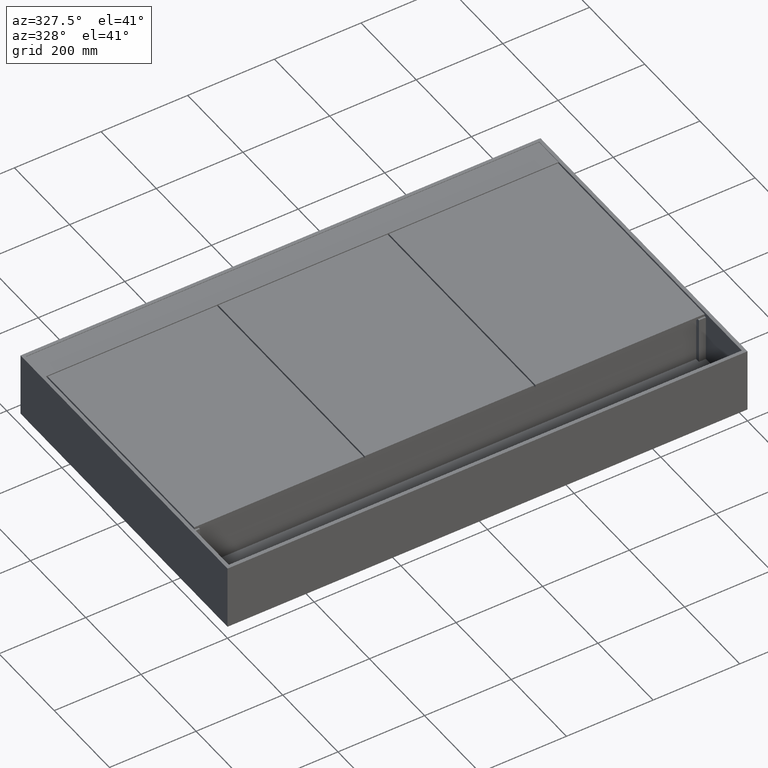
[diagram: clean part render]
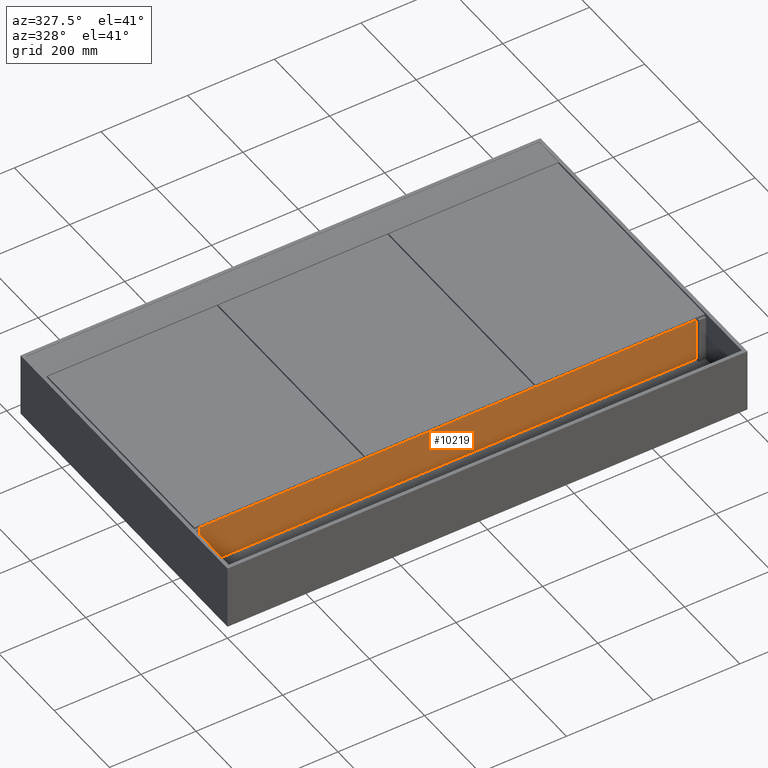
[diagram: same view with one face highlighted and labeled with its STEP entity id]
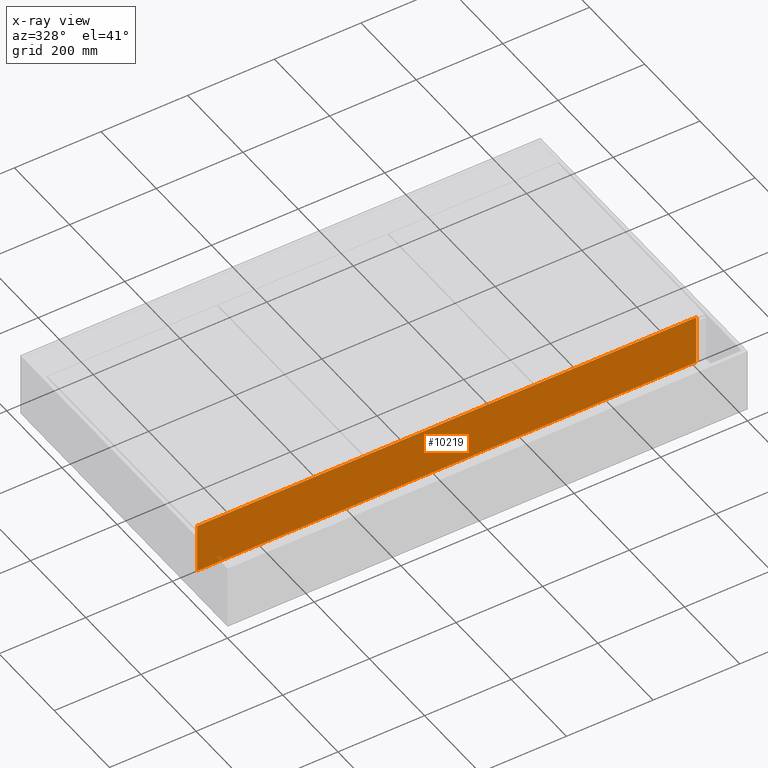
[diagram: x-ray of the same camera — body ghosted, the highlighted face saturated]
A machine part, auxiliary view. The second image highlights one B-rep face of the part: STEP entity #10219.
The next image is the same camera in x-ray: the body ghosted, the highlighted face saturated — about 0% of this face is hidden behind the body in this view.
In plain terms, the highlighted planar face has unit normal (-0, 1, 0).
Its self-contained STEP definition (entity closure, byte-faithful):
#601 = VERTEX_POINT ( 'NONE', #4114 ) ;
#823 = DIRECTION ( 'NONE',  ( -0.0000000000000000000, 1.000000000000000000, 0.0000000000000000000 ) ) ;
#1470 = LINE ( 'NONE', #6866, #16959 ) ;
#1647 = AXIS2_PLACEMENT_3D ( 'NONE', #13007, #823, #6223 ) ;
#1718 = ORIENTED_EDGE ( 'NONE', *, *, #17019, .T. ) ;
#1783 = CARTESIAN_POINT ( 'NONE',  ( 24.00000000000013145, 148.0000000000000284, -124.9999999999999432 ) ) ;
#1933 = VECTOR ( 'NONE', #3033, 1000.000000000000000 ) ;
#2055 = CARTESIAN_POINT ( 'NONE',  ( 1176.000000000000000, 148.0000000000000284, -124.9999999999999432 ) ) ;
#2149 = FACE_OUTER_BOUND ( 'NONE', #9505, .T. ) ;
#2318 = CARTESIAN_POINT ( 'NONE',  ( 24.00000000000013145, 148.0000000000000284, -124.9999999999999432 ) ) ;
#3033 = DIRECTION ( 'NONE',  ( -2.710598430313966572E-35, 0.0000000000000000000, -1.000000000000000000 ) ) ;
#3667 = CARTESIAN_POINT ( 'NONE',  ( 24.00000000000013145, 148.0000000000000284, -10.00000000000000888 ) ) ;
#4114 = CARTESIAN_POINT ( 'NONE',  ( 24.00000000000013145, 148.0000000000000284, -10.00000000000000888 ) ) ;
#5663 = ORIENTED_EDGE ( 'NONE', *, *, #10483, .F. ) ;
#6152 = VECTOR ( 'NONE', #9075, 1000.000000000000000 ) ;
#6223 = DIRECTION ( 'NONE',  ( 2.710598430313966572E-35, 0.0000000000000000000, 1.000000000000000000 ) ) ;
#6866 = CARTESIAN_POINT ( 'NONE',  ( 24.00000000000013145, 148.0000000000000284, 1142.111105753260290 ) ) ;
#7181 = DIRECTION ( 'NONE',  ( 1.000000000000000000, 0.0000000000000000000, 2.710598430313966572E-35 ) ) ;
#7551 = PLANE ( 'NONE',  #1647 ) ;
#8990 = VECTOR ( 'NONE', #7181, 1000.000000000000000 ) ;
#9075 = DIRECTION ( 'NONE',  ( 1.000000000000000000, 0.0000000000000000000, 2.710598430313966572E-35 ) ) ;
#9505 = EDGE_LOOP ( 'NONE', ( #10401, #1718, #10015, #5663 ) ) ;
#9796 = LINE ( 'NONE', #15219, #1933 ) ;
#10015 = ORIENTED_EDGE ( 'NONE', *, *, #15300, .T. ) ;
#10219 = ADVANCED_FACE ( 'NONE', ( #2149 ), #7551, .F. ) ;
#10255 = EDGE_CURVE ( 'NONE', #601, #15432, #15849, .T. ) ;
#10401 = ORIENTED_EDGE ( 'NONE', *, *, #10255, .F. ) ;
#10483 = EDGE_CURVE ( 'NONE', #15432, #12982, #9796, .T. ) ;
#12308 = DIRECTION ( 'NONE',  ( -2.710598430313966572E-35, 0.0000000000000000000, -1.000000000000000000 ) ) ;
#12982 = VERTEX_POINT ( 'NONE', #2055 ) ;
#13007 = CARTESIAN_POINT ( 'NONE',  ( 24.00000000000013145, 148.0000000000000284, 1142.111105753260290 ) ) ;
#13062 = CARTESIAN_POINT ( 'NONE',  ( 1176.000000000000000, 148.0000000000000284, -10.00000000000000888 ) ) ;
#13957 = LINE ( 'NONE', #1783, #8990 ) ;
#15219 = CARTESIAN_POINT ( 'NONE',  ( 1176.000000000000000, 148.0000000000000284, 1142.111105753260290 ) ) ;
#15300 = EDGE_CURVE ( 'NONE', #17329, #12982, #13957, .T. ) ;
#15432 = VERTEX_POINT ( 'NONE', #13062 ) ;
#15849 = LINE ( 'NONE', #3667, #6152 ) ;
#16959 = VECTOR ( 'NONE', #12308, 1000.000000000000000 ) ;
#17019 = EDGE_CURVE ( 'NONE', #601, #17329, #1470, .T. ) ;
#17329 = VERTEX_POINT ( 'NONE', #2318 ) ;